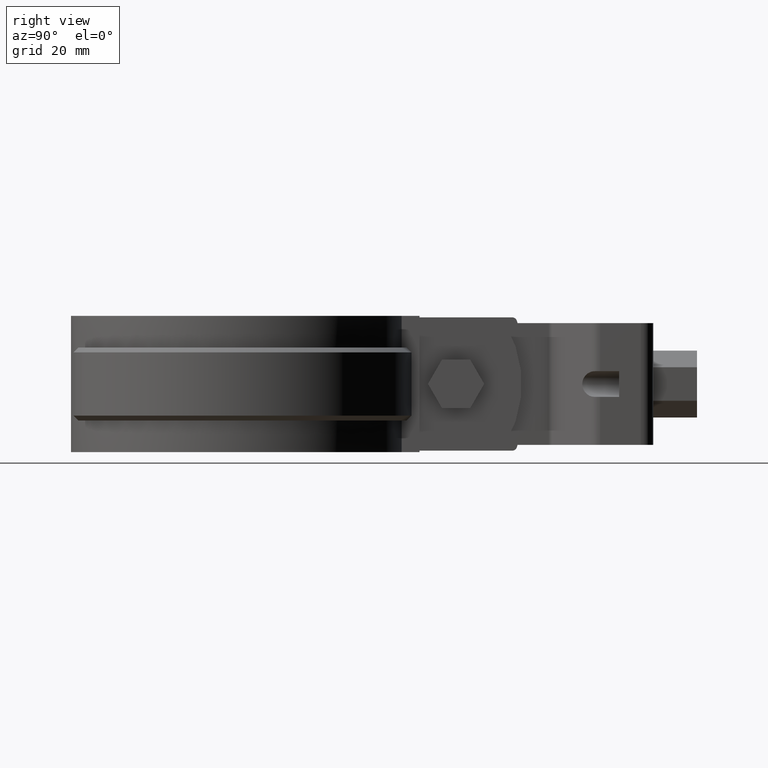
[diagram: clean part render]
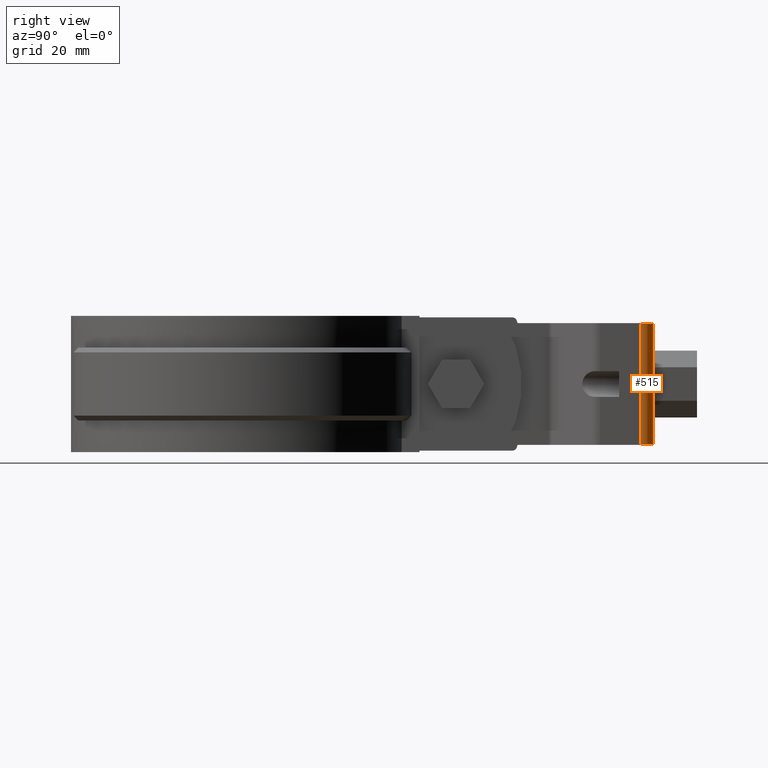
[diagram: same view with one face highlighted and labeled with its STEP entity id]
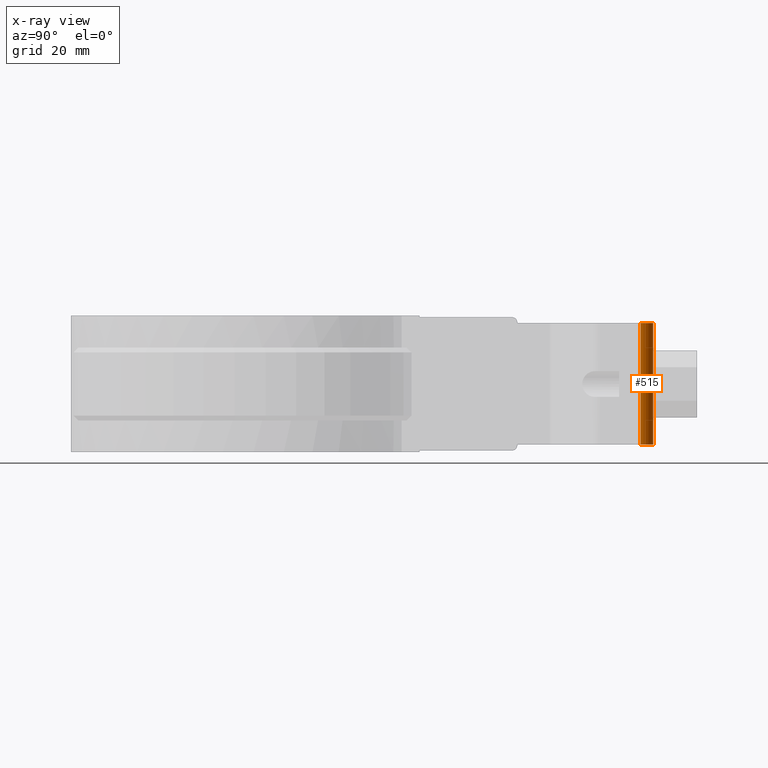
[diagram: x-ray of the same camera — body ghosted, the highlighted face saturated]
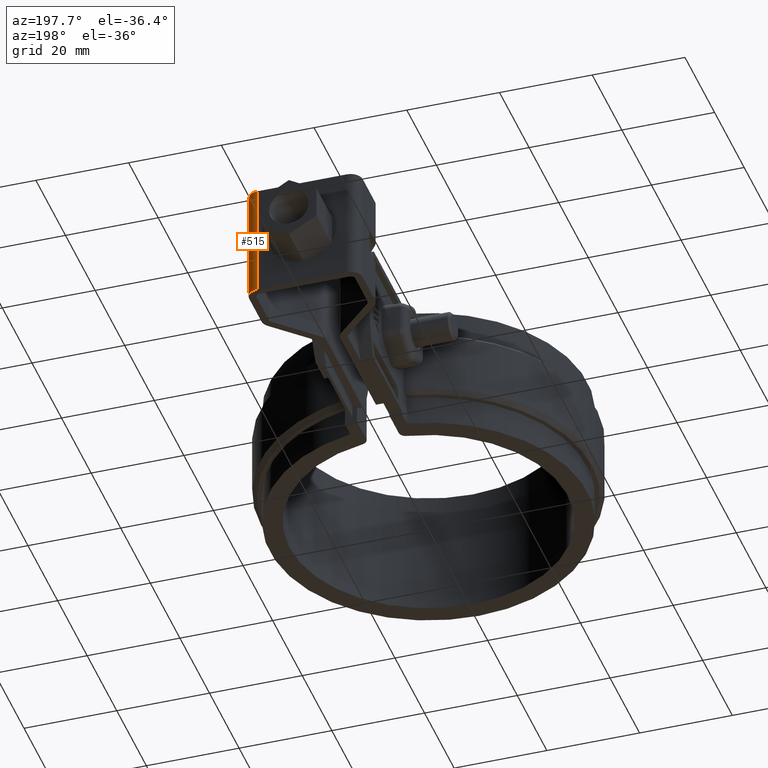
[diagram: same view with one face highlighted and labeled with its STEP entity id]
A machine part, right view. The second image highlights one B-rep face of the part: STEP entity #515.
The next image is the same camera in x-ray: the body ghosted, the highlighted face saturated — about 0% of this face is hidden behind the body in this view.
A second angle (auxiliary view) of the same face is appended — the face is thin or edge-on in the first view.
In plain terms, the highlighted cylindrical surface (edge-blend (fillet) strip) has radius 2.6 mm, axis along (0, 0, 1).
Its self-contained STEP definition (entity closure, byte-faithful):
#515 = ADVANCED_FACE( '', ( #1026 ), #1027, .T. );
#1026 = FACE_OUTER_BOUND( '', #2281, .T. );
#1027 = CYLINDRICAL_SURFACE( '', #2282, 2.60000000000000 );
#2281 = EDGE_LOOP( '', ( #5253, #5254, #5255, #5256 ) );
#2282 = AXIS2_PLACEMENT_3D( '', #5257, #5258, #5259 );
#5253 = ORIENTED_EDGE( '', *, *, #7272, .T. );
#5254 = ORIENTED_EDGE( '', *, *, #7273, .F. );
#5255 = ORIENTED_EDGE( '', *, *, #7197, .F. );
#5256 = ORIENTED_EDGE( '', *, *, #7274, .T. );
#5257 = CARTESIAN_POINT( '', ( 9.64999999995578, 82.8015111822747, -8.79542272347322E-009 ) );
#5258 = DIRECTION( '', ( 3.93786081994497E-013, 6.36784791563427E-011, 1.00000000000000 ) );
#5259 = DIRECTION( '', ( -8.94763121102738E-014, 1.00000000000000, -6.36784791563427E-011 ) );
#7197 = EDGE_CURVE( '', #8394, #8396, #8397, .F. );
#7272 = EDGE_CURVE( '', #8526, #8527, #8528, .F. );
#7273 = EDGE_CURVE( '', #8396, #8527, #8529, .T. );
#7274 = EDGE_CURVE( '', #8394, #8526, #8530, .T. );
#8394 = VERTEX_POINT( '', #12034 );
#8396 = VERTEX_POINT( '', #12037 );
#8397 = CIRCLE( '', #12038, 2.60000000000000 );
#8526 = VERTEX_POINT( '', #12259 );
#8527 = VERTEX_POINT( '', #12260 );
#8528 = CIRCLE( '', #12261, 2.60000000000000 );
#8529 = LINE( '', #12262, #12263 );
#8530 = LINE( '', #12264, #12265 );
#12034 = CARTESIAN_POINT( '', ( 12.2499999999562, 82.8015111822748, -8.79646936652598E-009 ) );
#12037 = CARTESIAN_POINT( '', ( 9.64999999995566, 85.4015111822737, -8.96100956851921E-009 ) );
#12038 = AXIS2_PLACEMENT_3D( '', #13896, #13897, #13898 );
#12259 = CARTESIAN_POINT( '', ( 12.2499999999463, 82.8015111806828, -25.0000000087965 ) );
#12260 = CARTESIAN_POINT( '', ( 9.64999999994582, 85.4015111806817, -25.0000000089611 ) );
#12261 = AXIS2_PLACEMENT_3D( '', #14017, #14018, #14019 );
#12262 = CARTESIAN_POINT( '', ( 9.64999999995554, 85.4015111822747, -8.96098473202045E-009 ) );
#12263 = VECTOR( '', #14020, 1000.00000000000 );
#12264 = CARTESIAN_POINT( '', ( 12.2499999999558, 82.8015111822749, -8.79643580198319E-009 ) );
#12265 = VECTOR( '', #14021, 1000.00000000000 );
#13896 = CARTESIAN_POINT( '', ( 9.64999999995578, 82.8015111822747, -8.79544552271279E-009 ) );
#13897 = DIRECTION( '', ( -3.93786081994497E-013, -6.36784791563427E-011, -1.00000000000000 ) );
#13898 = DIRECTION( '', ( 0.000000000000000, 1.00000000000000, -6.36784791563427E-011 ) );
#14017 = CARTESIAN_POINT( '', ( 9.64999999994594, 82.8015111806827, -25.0000000087955 ) );
#14018 = DIRECTION( '', ( -3.93786081994497E-013, -6.36784791563427E-011, -1.00000000000000 ) );
#14019 = DIRECTION( '', ( 0.000000000000000, 1.00000000000000, -6.36784791563427E-011 ) );
#14020 = DIRECTION( '', ( -3.93786081994497E-013, -6.36784791563427E-011, -1.00000000000000 ) );
#14021 = DIRECTION( '', ( -3.93786081994497E-013, -6.36784791563427E-011, -1.00000000000000 ) );